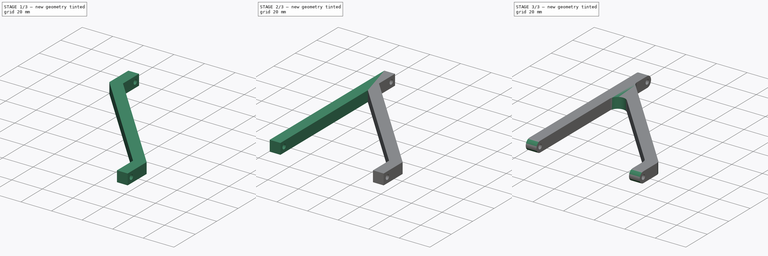
[diagram: build sequence overview — one tinted view per stage of 3, left to right]
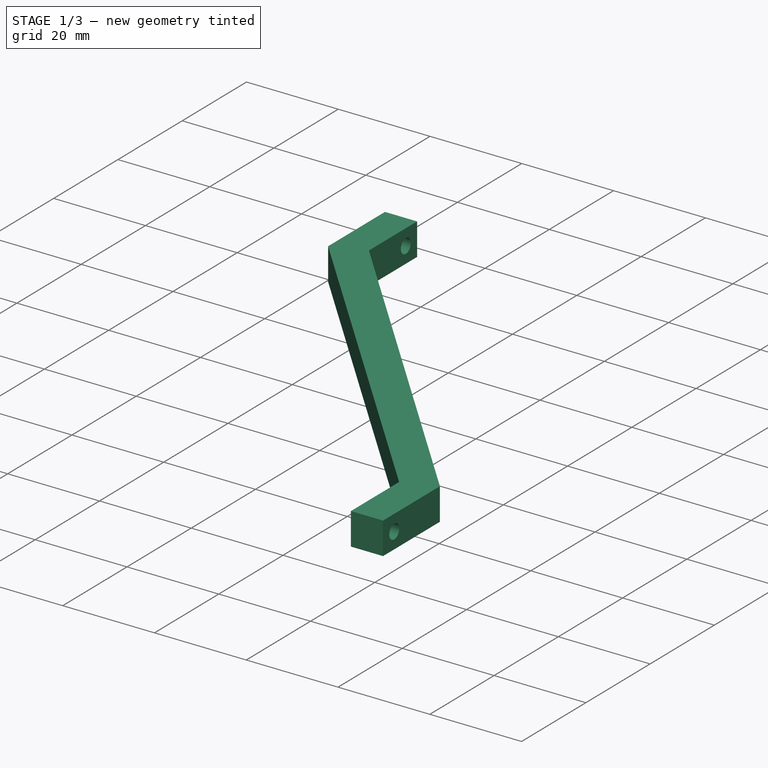
[diagram: stage 1 of 3 — iso view after this stage's code; geometry added in this stage tinted green]
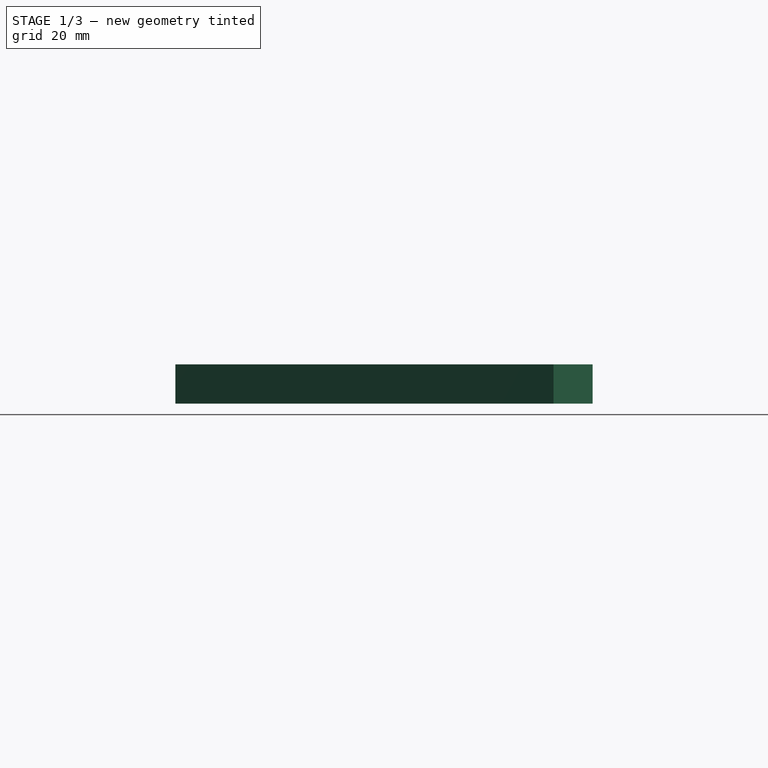
[diagram: stage 1 of 3 — front view after this stage's code; geometry added in this stage tinted green]
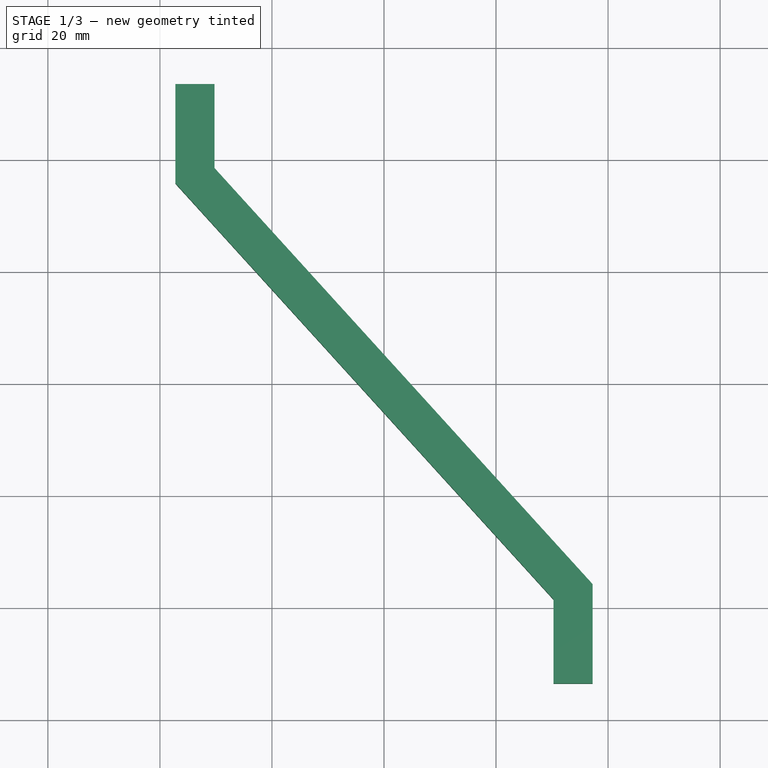
[diagram: stage 1 of 3 — top view after this stage's code; geometry added in this stage tinted green]
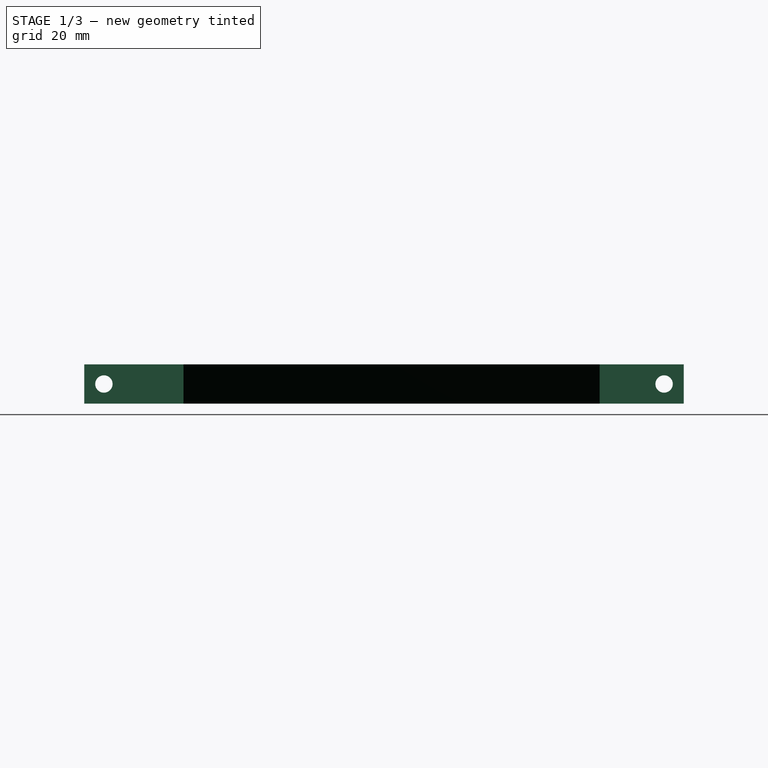
[diagram: stage 1 of 3 — right view after this stage's code; geometry added in this stage tinted green]
FCSTD DOCUMENT  (FreeCAD 1.1R44874 (Git))
Label: haste-Z-2
License: All rights reserved
LicenseURL: https://en.wikipedia.org/wiki/All_rights_reserved
objects: Sketcher::SketchObject×3, PartDesign::Pad×2, PartDesign::Pocket×2, PartDesign::Fillet×2, PartDesign::Body×1, App::Point×1
note: 25 computed .brp shape members not serialized (recipe doc carries the construction recipe); baked Part::Feature solids carry a one-line shape summary decoded from their .brp

FEATURE [Sketcher::SketchObject] Sketch
  ArcFitTolerance = 1e-06
  AttachmentSupport = -> [XY_Plane]
  ExternalTypes = [0]
  FullyConstrained = true
  MakeInternals = false
  MapMode = 5
  _ExternalGeoVersion = 0
  sketch-geometry (13):
    g0: LineSegment [constr] StartX=-37.25 StartY=53.5 StartZ=0 EndX=-37.25 EndY=-53.5 EndZ=0
    g1: LineSegment [constr] StartX=-37.25 StartY=-53.5 StartZ=0 EndX=37.25 EndY=-53.5 EndZ=0
    g2: LineSegment [constr] StartX=37.25 StartY=-53.5 StartZ=0 EndX=37.25 EndY=53.5 EndZ=0
    g3: LineSegment [constr] StartX=37.25 StartY=53.5 StartZ=0 EndX=-37.25 EndY=53.5 EndZ=0
    g4: LineSegment StartX=-37.25 StartY=35.795 StartZ=0 EndX=-37.25 EndY=53.5 EndZ=0
    g5: LineSegment StartX=-37.25 StartY=53.5 StartZ=0 EndX=-30.25 EndY=53.5 EndZ=0
    g6: LineSegment StartX=-30.25 StartY=53.5 StartZ=0 EndX=-30.25 EndY=38.5 EndZ=0
    g7: LineSegment StartX=-30.25 StartY=38.5 StartZ=0 EndX=37.25 EndY=-35.795 EndZ=0
    g8: LineSegment StartX=37.25 StartY=-35.795 StartZ=0 EndX=37.25 EndY=-53.5 EndZ=0
    g9: LineSegment StartX=37.25 StartY=-53.5 StartZ=0 EndX=30.25 EndY=-53.5 EndZ=0
    g10: LineSegment StartX=30.25 StartY=-53.5 StartZ=0 EndX=30.25 EndY=-38.5 EndZ=0
    g11: LineSegment StartX=30.25 StartY=-38.5 StartZ=0 EndX=-37.25 EndY=35.795 EndZ=0
    g12: LineSegment [constr] StartX=-3.5 StartY=-1.35252 StartZ=0 EndX=1.681 EndY=3.35463 EndZ=0
  constraints (35):
    c: Coincident(g0,g1)
    c: Coincident(g1,g2)
    c: Coincident(g2,g3)
    c: Coincident(g3,g0)
    c: Vertical(g2)
    c: Horizontal(g1)
    c: Symmetric(g0,g0,g-1)
    c: Symmetric(g0,g2,g-2)
    c: Distance(g3,g3) = 74.5
    c: Distance(g0,g0) = 107
    c: Vertical(g4)
    c: Coincident(g4,g5)
    c: Horizontal(g5)
    c: Coincident(g5,g6)
    c: Vertical(g6)
    c: Coincident(g6,g7)
    c: Coincident(g7,g8)
    c: Vertical(g8)
    c: Coincident(g8,g9)
    c: Horizontal(g9)
    c: Coincident(g9,g10)
    c: Coincident(g10,g11)
    c: Coincident(g11,g4)
    c: Vertical(g10)
    c: Equal(g10,g6)
    c: Equal(g8,g4)
    c: Coincident(g8,g1)
    c: Coincident(g4,g0)
    c: Symmetric(g10,g4,g12)
    c: PointOnObject(g12,g11)
    c: PointOnObject(g12,g7)
    c: Equal(g5,g12)
    c: Equal(g12,g9)
    c: Distance(g5,g5) = 7
    c: Distance(g10,g10) = 15
FEATURE [PartDesign::Pad] Pad
  Direction = (0,0,1)
  Length = 7
  Length2 = 10
  Profile = -> Sketch
  ReferenceAxis = -> Sketch [N_Axis]
  Refine = true
  SideType = 0
  Suppressed = false
  Type = 0
  Type2 = 0
FEATURE [Sketcher::SketchObject] Sketch001
  ArcFitTolerance = 1e-06
  AttachmentSupport = -> [Pad]
  ExternalGeometry = -> [Pad]
  ExternalTypes = [0]
  FullyConstrained = true
  MakeInternals = false
  MapMode = 5
  Placement = pos=(-37.25,0,0) rot=(0.57735,-0.57735,-0.57735;2.0944rad)
  _ExternalGeoVersion = 0
  sketch-geometry (4):
    g0: Circle [constr] CenterX=-50 CenterY=3.5 CenterZ=0 NormalX=0 NormalY=0 NormalZ=1 AngleXU=0 Radius=3.5
    g1: Circle [constr] CenterX=50 CenterY=3.5 CenterZ=0 NormalX=0 NormalY=0 NormalZ=1 AngleXU=0 Radius=3.5
    g2: Circle CenterX=-50 CenterY=3.5 CenterZ=0 NormalX=0 NormalY=0 NormalZ=1 AngleXU=0 Radius=1.55
    g3: Circle CenterX=50 CenterY=3.5 CenterZ=0 NormalX=0 NormalY=0 NormalZ=1 AngleXU=0 Radius=1.55
  constraints (10):
    c: Tangent(g1,g-6)
    c: Tangent(g1,g-7)
    c: Tangent(g-8,g1)
    c: Tangent(g0,g-3)
    c: Tangent(g0,g-4)
    c: Tangent(g0,g-5)
    c: Coincident(g2,g0)
    c: Coincident(g3,g1)
    c: Equal(g3,g2)
    c: Diameter(g3) = 3.1
FEATURE [PartDesign::Pocket] Pocket
  BaseFeature = -> Pad
  Direction = (1,0,0)
  Length = 5
  Length2 = 5
  Profile = -> Sketch001
  ReferenceAxis = -> Sketch001 [N_Axis]
  Refine = true
  SideType = 0
  Suppressed = false
  Type = 1
  Type2 = 0
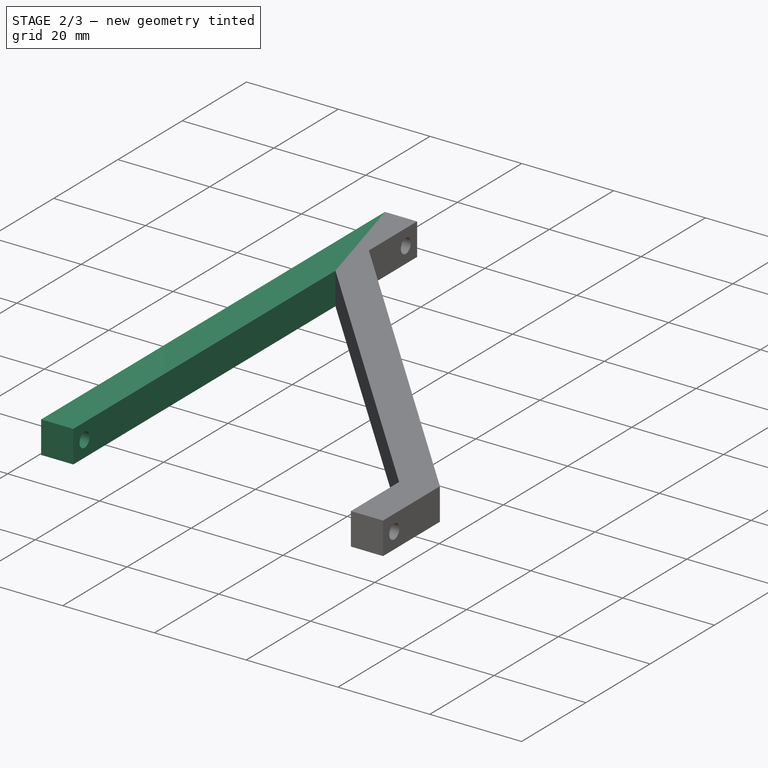
[diagram: stage 2 of 3 — iso view after this stage's code; geometry added in this stage tinted green]
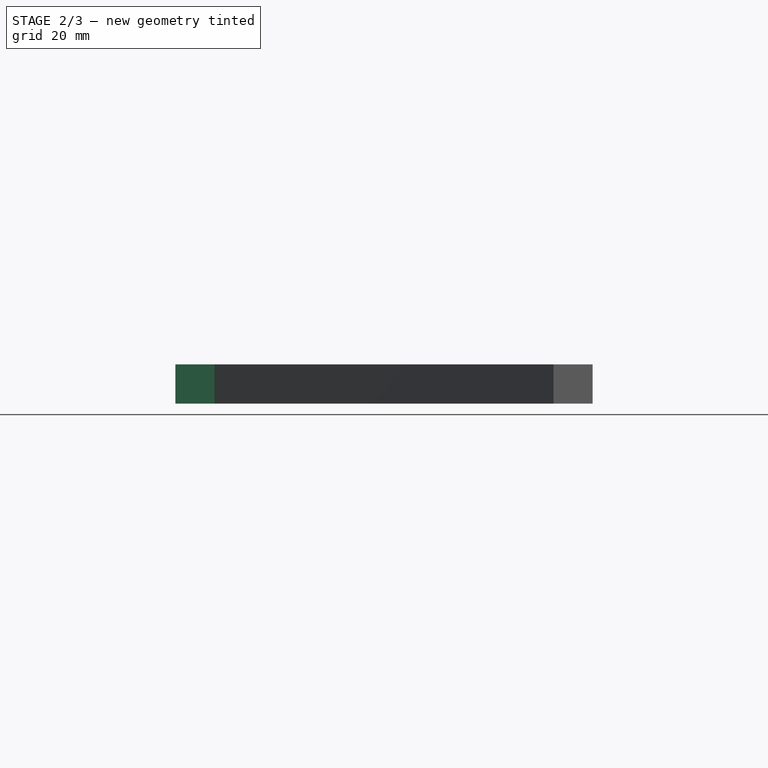
[diagram: stage 2 of 3 — front view after this stage's code; geometry added in this stage tinted green]
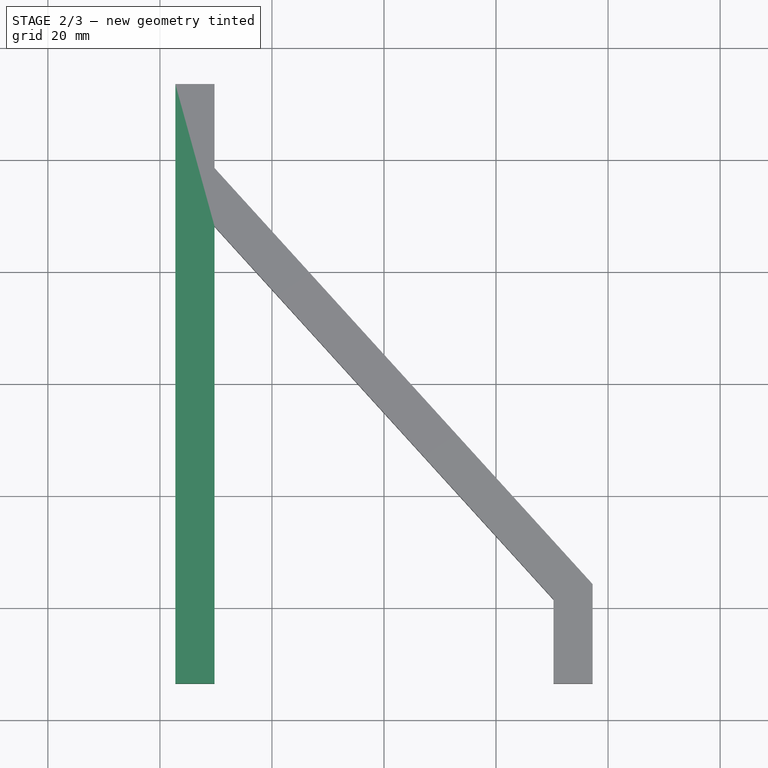
[diagram: stage 2 of 3 — top view after this stage's code; geometry added in this stage tinted green]
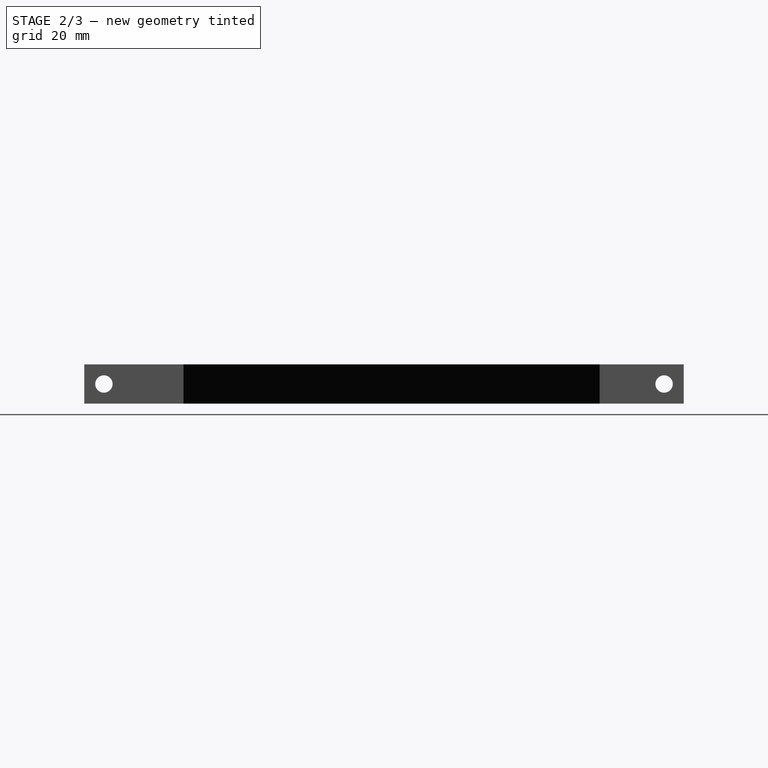
[diagram: stage 2 of 3 — right view after this stage's code; geometry added in this stage tinted green]
FEATURE [Sketcher::SketchObject] Sketch002
  ArcFitTolerance = 1e-06
  AttachmentSupport = -> [Pocket]
  ExternalGeometry = -> [Pocket]
  ExternalTypes = [0]
  FullyConstrained = true
  MakeInternals = false
  MapMode = 5
  Placement = pos=(0,0,7) rot=(0,0,1;0rad)
  _ExternalGeoVersion = 0
  sketch-geometry (4):
    g0: LineSegment StartX=-37.25 StartY=35.795 StartZ=0 EndX=-37.25 EndY=-53.5 EndZ=0
    g1: LineSegment StartX=-37.25 StartY=-53.5 StartZ=0 EndX=-30.25 EndY=-53.5 EndZ=0
    g2: LineSegment StartX=-30.25 StartY=-53.5 StartZ=0 EndX=-30.25 EndY=35.795 EndZ=0
    g3: LineSegment StartX=-30.25 StartY=35.795 StartZ=0 EndX=-37.25 EndY=35.795 EndZ=0
  constraints (11):
    c: Coincident(g0,g1)
    c: Coincident(g1,g2)
    c: Coincident(g2,g3)
    c: Coincident(g3,g0)
    c: Vertical(g0)
    c: Vertical(g2)
    c: Horizontal(g1)
    c: Horizontal(g3)
    c: Coincident(g0,g-4)
    c: Vertical(g2,g-5)
    c: Horizontal(g1,g-6)
FEATURE [PartDesign::Pad] Pad001
  BaseFeature = -> Pocket
  Direction = (0,0,1)
  Length = 10
  Length2 = 10
  Profile = -> Sketch002
  ReferenceAxis = -> Sketch002 [N_Axis]
  Refine = true
  SideType = 0
  Suppressed = false
  Type = 3
  Type2 = 0
  UpToFace = -> Pocket [Face3]
FEATURE [PartDesign::Pocket] Pocket001
  BaseFeature = -> Pad001
  Direction = (-1,0,0)
  Length = 5
  Length2 = 5
  Profile = -> Pad001 [Edge17]
  Refine = true
  SideType = 0
  Suppressed = false
  Type = 1
  Type2 = 0
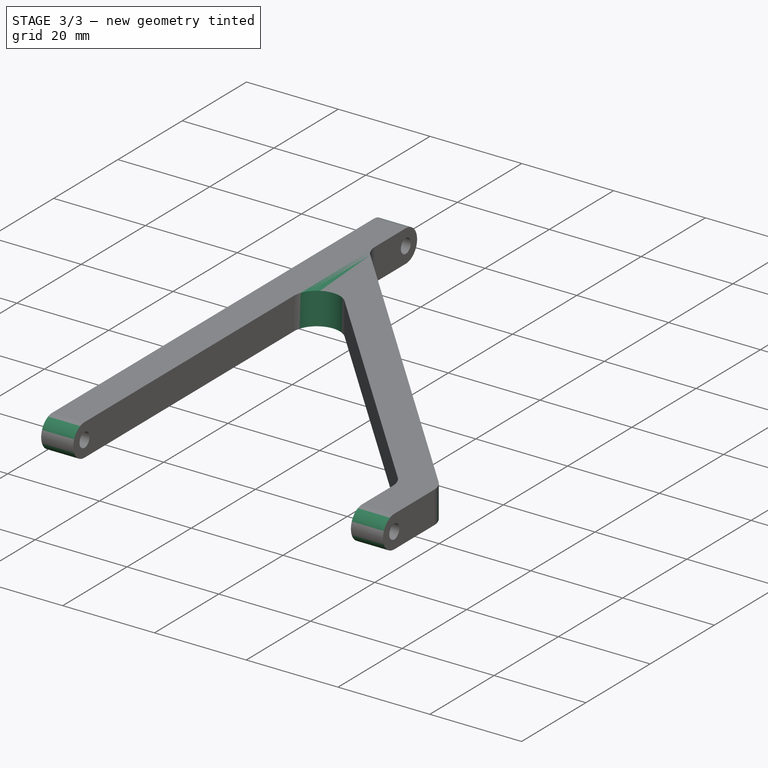
[diagram: stage 3 of 3 — iso view after this stage's code; geometry added in this stage tinted green]
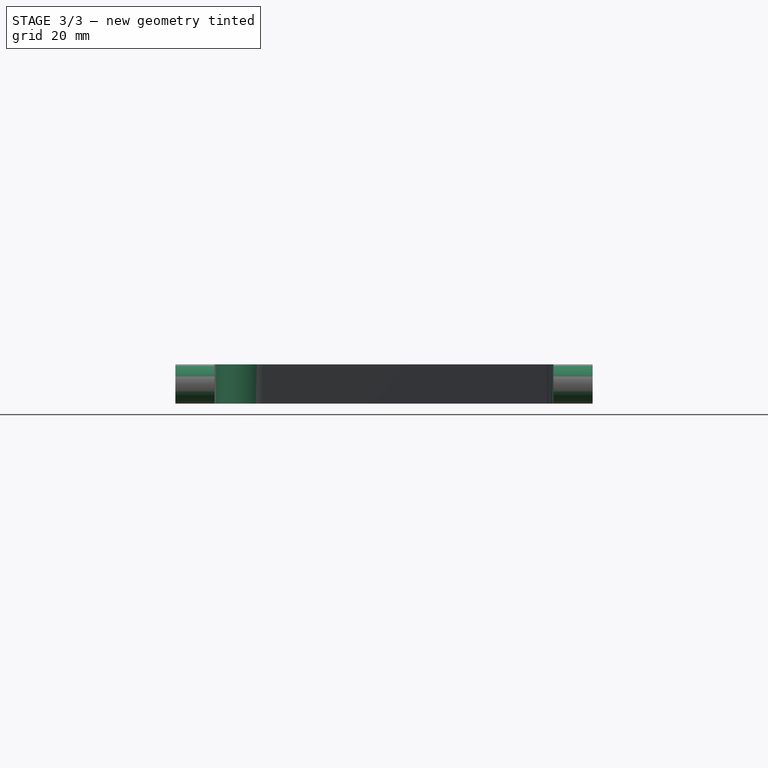
[diagram: stage 3 of 3 — front view after this stage's code; geometry added in this stage tinted green]
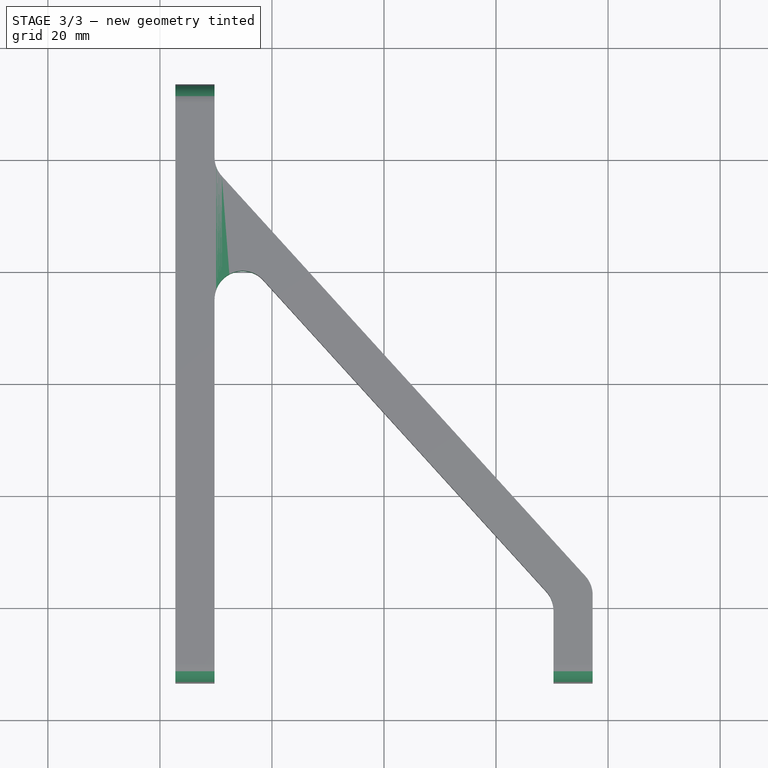
[diagram: stage 3 of 3 — top view after this stage's code; geometry added in this stage tinted green]
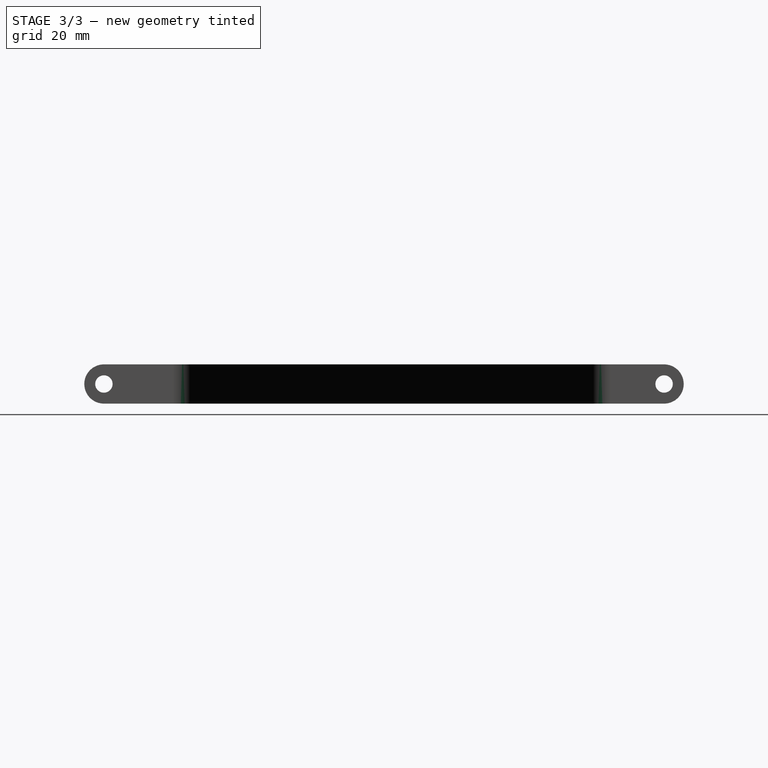
[diagram: stage 3 of 3 — right view after this stage's code; geometry added in this stage tinted green]
FEATURE [PartDesign::Fillet] Fillet
  Base = -> Pocket001 [Edge16,Edge25,Edge20,Edge21,Edge3,Edge4]
  BaseFeature = -> Pocket001
  Radius = 3.4999
  Refine = true
  SupportTransform = false
  Suppressed = false
  UseAllEdges = false
FEATURE [PartDesign::Fillet] Fillet001
  Base = -> Fillet [Edge44,Edge46,Edge20,Edge45]
  BaseFeature = -> Fillet
  Radius = 5
  Refine = true
  SupportTransform = false
  Suppressed = false
  UseAllEdges = false
FEATURE [PartDesign::Body] Body  label="Corpo"
  AllowCompound = false
  Group = -> [Sketch,Pad,Sketch001,Pocket,Sketch002,Pad001,Pocket001,Fillet,Fillet001]
  Origin = -> Origin
  Tip = -> Fillet001
FEATURE [App::Point] Origin001  label="Origem"
  Role = Origin
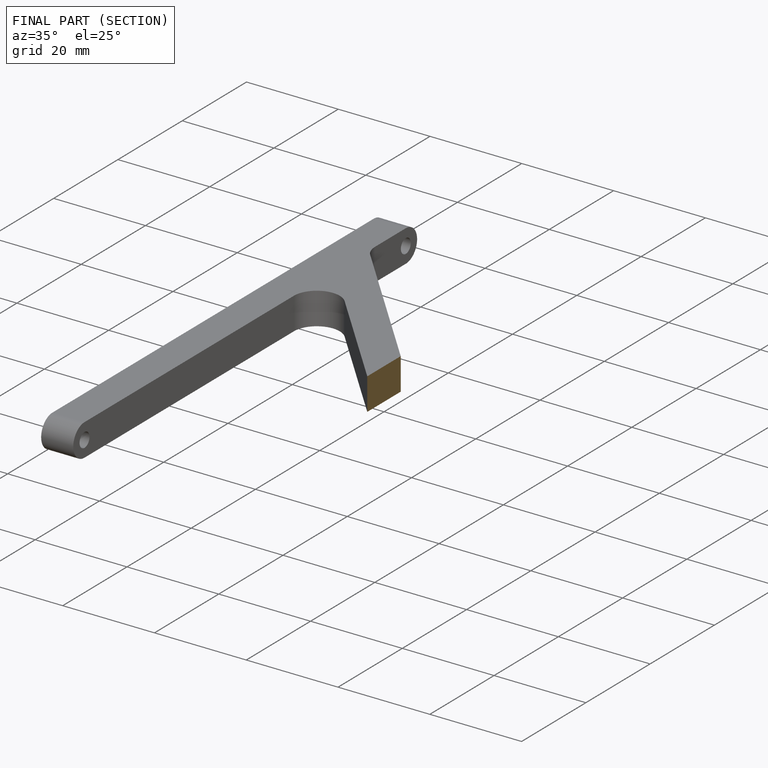
[diagram: finished part — half-section view (interior)]
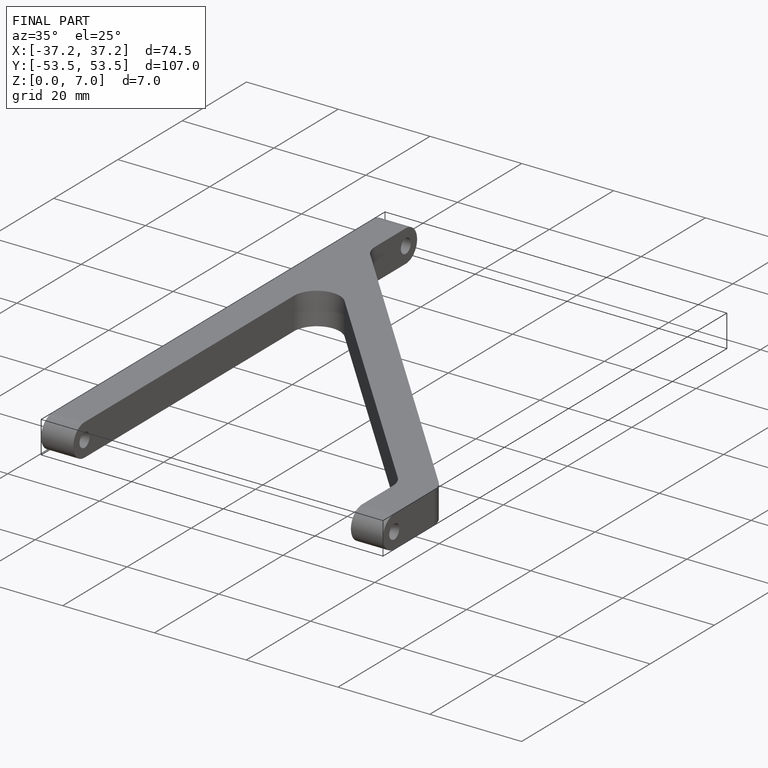
[diagram: finished part — iso view with bounding-box wireframe]
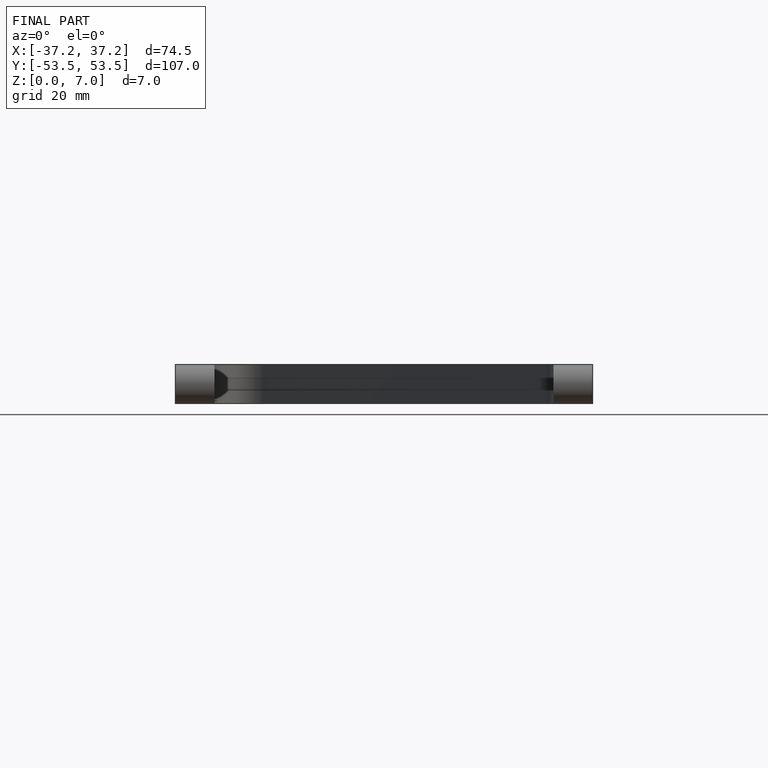
[diagram: finished part — front view with bounding-box wireframe]
